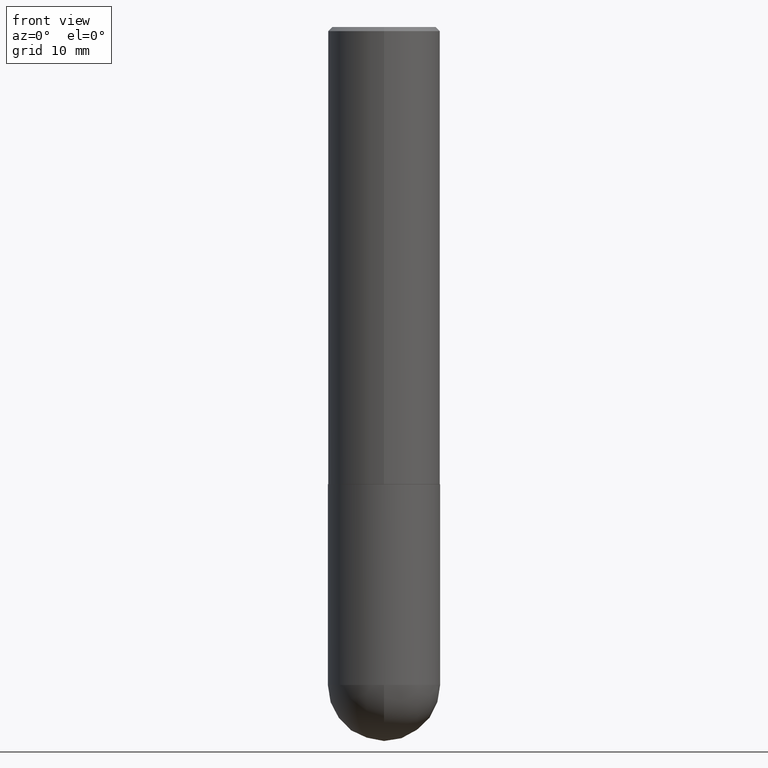
[diagram: clean part render]
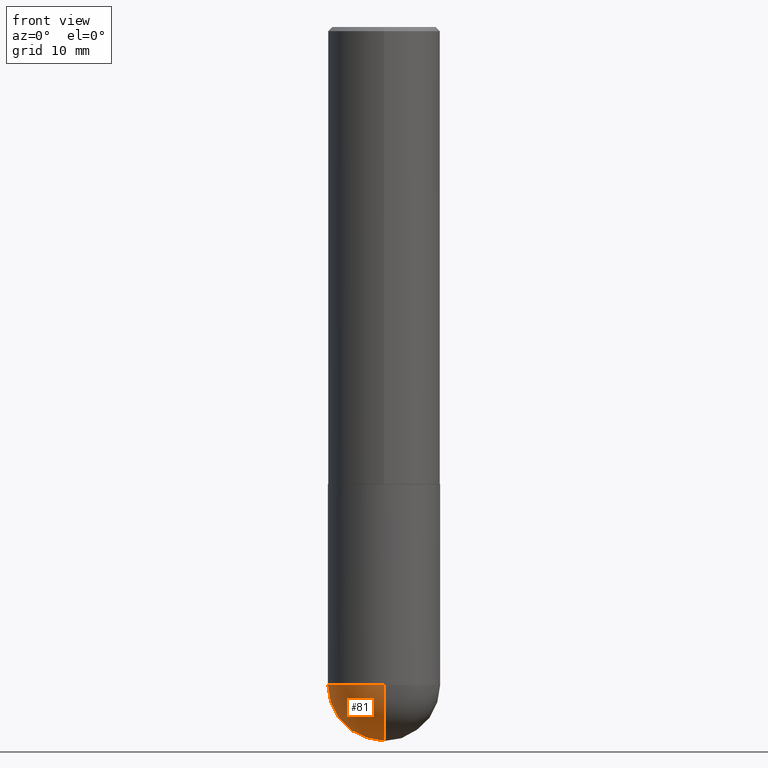
[diagram: same view with one face highlighted and labeled with its STEP entity id]
A machine part, front view. The second image highlights one B-rep face of the part: STEP entity #81.
In plain terms, the highlighted spherical surface has radius 7.0002 mm.
Its self-contained STEP definition (entity closure, byte-faithful):
#1 = FACE_OUTER_BOUND ( 'NONE', #71, .T. ) ;
#15 = DIRECTION ( 'NONE',  ( 1.000000000000000000, -6.982962677686265922E-15, 4.883557194083112340E-29 ) ) ;
#21 = ORIENTED_EDGE ( 'NONE', *, *, #86, .F. ) ;
#29 = DIRECTION ( 'NONE',  ( -2.445468806185136597E-29, 3.491481338843145583E-15, 1.000000000000000000 ) ) ;
#30 = AXIS2_PLACEMENT_3D ( 'NONE', #297, #15, #327 ) ;
#39 = CARTESIAN_POINT ( 'NONE',  ( -1.958255779754759675E-15, -0.2756000000000117245, -3.228299999999998615 ) ) ;
#71 = EDGE_LOOP ( 'NONE', ( #272, #351, #264, #21 ) ) ;
#81 = ADVANCED_FACE ( 'NONE', ( #1 ), #379, .T. ) ;
#86 = EDGE_CURVE ( 'NONE', #353, #378, #356, .T. ) ;
#95 = DIRECTION ( 'NONE',  ( 6.982962677686265922E-15, 1.000000000000000000, -3.964946289788475374E-15 ) ) ;
#120 = CIRCLE ( 'NONE', #137, 0.2756000000000003447 ) ;
#121 = DIRECTION ( 'NONE',  ( -1.000000000000000000, 6.982962677686265922E-15, -4.883557194083112340E-29 ) ) ;
#129 = CARTESIAN_POINT ( 'NONE',  ( 7.894706947007475996E-29, -1.127154920618732565E-14, -3.228299999999999503 ) ) ;
#132 = CARTESIAN_POINT ( 'NONE',  ( 7.563587169093589749E-29, -1.174573157432737594E-14, -3.228299999999999503 ) ) ;
#133 = AXIS2_PLACEMENT_3D ( 'NONE', #175, #121, #95 ) ;
#137 = AXIS2_PLACEMENT_3D ( 'NONE', #132, #262, #385 ) ;
#144 = CIRCLE ( 'NONE', #172, 0.2756000000000000671 ) ;
#172 = AXIS2_PLACEMENT_3D ( 'NONE', #255, #345, #325 ) ;
#175 = CARTESIAN_POINT ( 'NONE',  ( 7.563587169093589749E-29, -1.174573157432737594E-14, -3.228299999999999503 ) ) ;
#209 = DIRECTION ( 'NONE',  ( 1.000000000000000000, -6.982962677686264344E-15, 0.000000000000000000 ) ) ;
#234 = CARTESIAN_POINT ( 'NONE',  ( -0.2756000000000000671, -7.595135459587778194E-15, -3.228299999999999503 ) ) ;
#241 = EDGE_CURVE ( 'NONE', #378, #367, #144, .T. ) ;
#255 = CARTESIAN_POINT ( 'NONE',  ( 7.894706947007475996E-29, -1.127154920618732565E-14, -3.228299999999999503 ) ) ;
#262 = DIRECTION ( 'NONE',  ( -1.000000000000000000, 7.105427357601001070E-15, -4.926315508542082329E-29 ) ) ;
#264 = ORIENTED_EDGE ( 'NONE', *, *, #241, .F. ) ;
#265 = VERTEX_POINT ( 'NONE', #372 ) ;
#267 = AXIS2_PLACEMENT_3D ( 'NONE', #129, #29, #209 ) ;
#272 = ORIENTED_EDGE ( 'NONE', *, *, #359, .F. ) ;
#297 = CARTESIAN_POINT ( 'NONE',  ( 7.563587169093589749E-29, -1.174573157432737594E-14, -3.228299999999999503 ) ) ;
#312 = EDGE_CURVE ( 'NONE', #265, #367, #120, .T. ) ;
#325 = DIRECTION ( 'NONE',  ( 1.000000000000000000, -6.982962677686264344E-15, 0.000000000000000000 ) ) ;
#327 = DIRECTION ( 'NONE',  ( 6.982962677686265922E-15, 1.000000000000000000, 0.000000000000000000 ) ) ;
#345 = DIRECTION ( 'NONE',  ( -2.445468806185136597E-29, 3.491481338843145583E-15, 1.000000000000000000 ) ) ;
#351 = ORIENTED_EDGE ( 'NONE', *, *, #312, .T. ) ;
#353 = VERTEX_POINT ( 'NONE', #395 ) ;
#356 = CIRCLE ( 'NONE', #267, 0.2756000000000000671 ) ;
#359 = EDGE_CURVE ( 'NONE', #265, #353, #392, .T. ) ;
#367 = VERTEX_POINT ( 'NONE', #39 ) ;
#372 = CARTESIAN_POINT ( 'NONE',  ( 8.249342563543106087E-29, -1.269110819842029813E-14, -3.503899999999999793 ) ) ;
#378 = VERTEX_POINT ( 'NONE', #234 ) ;
#379 = SPHERICAL_SURFACE ( 'NONE', #133, 0.2756000000000003447 ) ;
#385 = DIRECTION ( 'NONE',  ( -7.105427357601001859E-15, -1.000000000000000000, 0.000000000000000000 ) ) ;
#392 = CIRCLE ( 'NONE', #30, 0.2756000000000003447 ) ;
#395 = CARTESIAN_POINT ( 'NONE',  ( 1.924504513970413840E-15, 0.2755999999999887429, -3.228300000000000836 ) ) ;